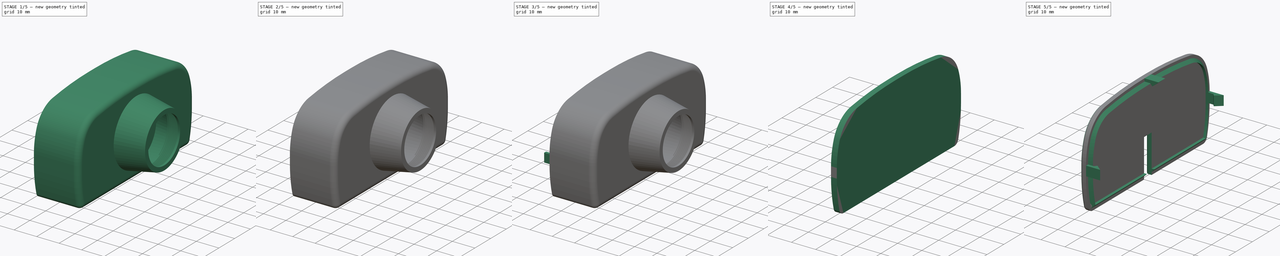
[diagram: build sequence overview — one tinted view per stage of 5, left to right]
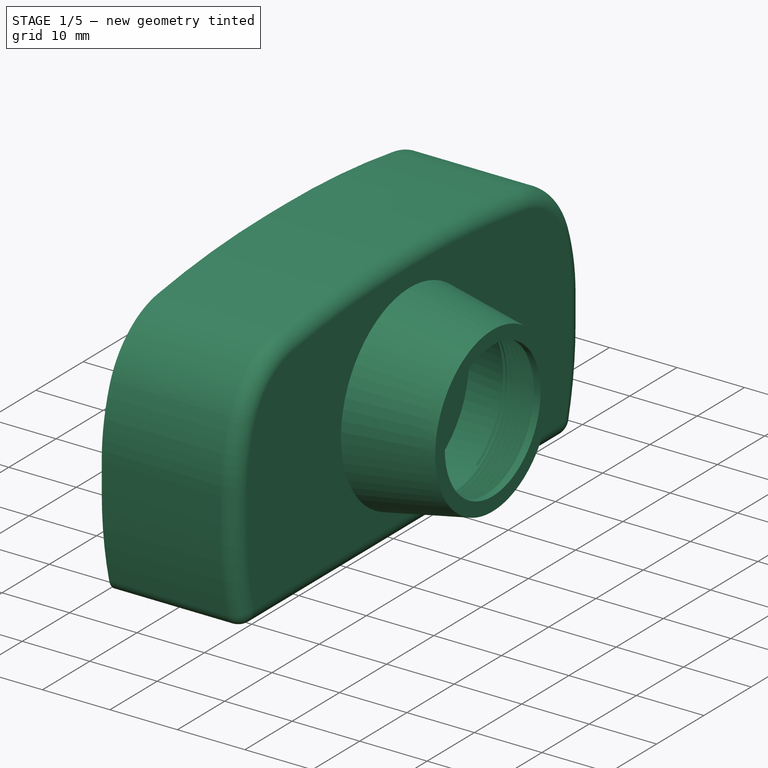
[diagram: stage 1 of 5 — iso view after this stage's code; geometry added in this stage tinted green]
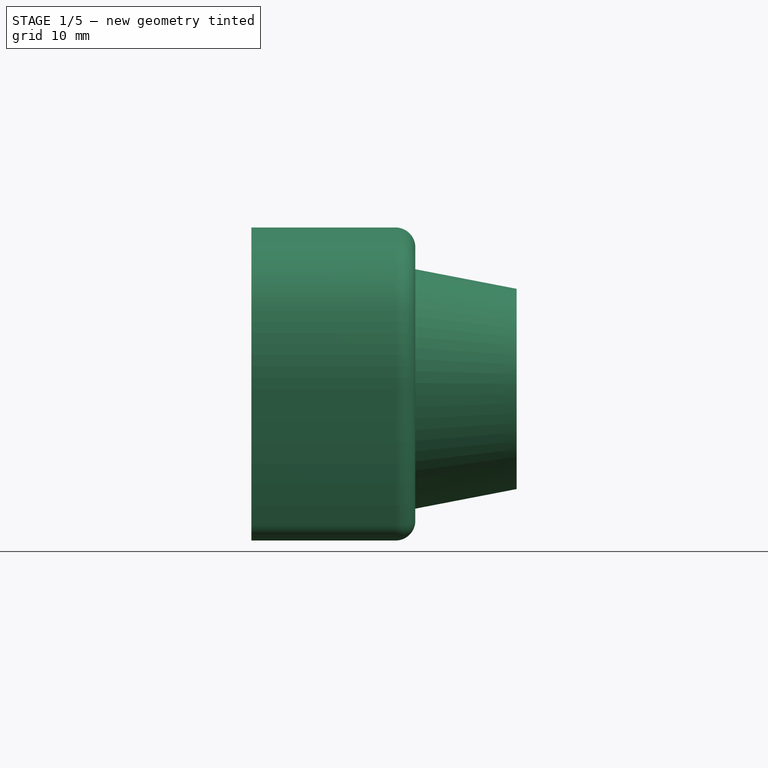
[diagram: stage 1 of 5 — front view after this stage's code; geometry added in this stage tinted green]
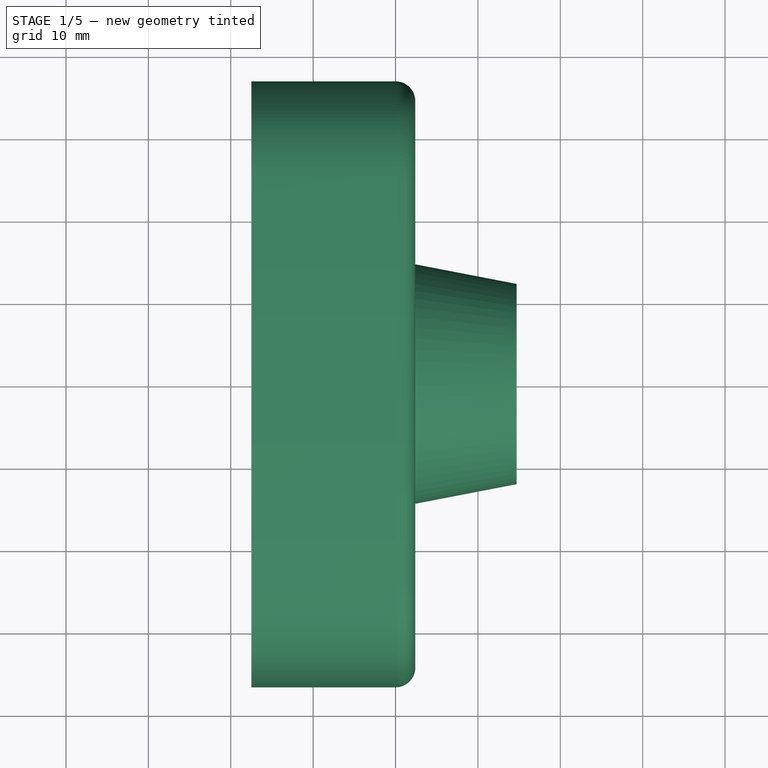
[diagram: stage 1 of 5 — top view after this stage's code; geometry added in this stage tinted green]
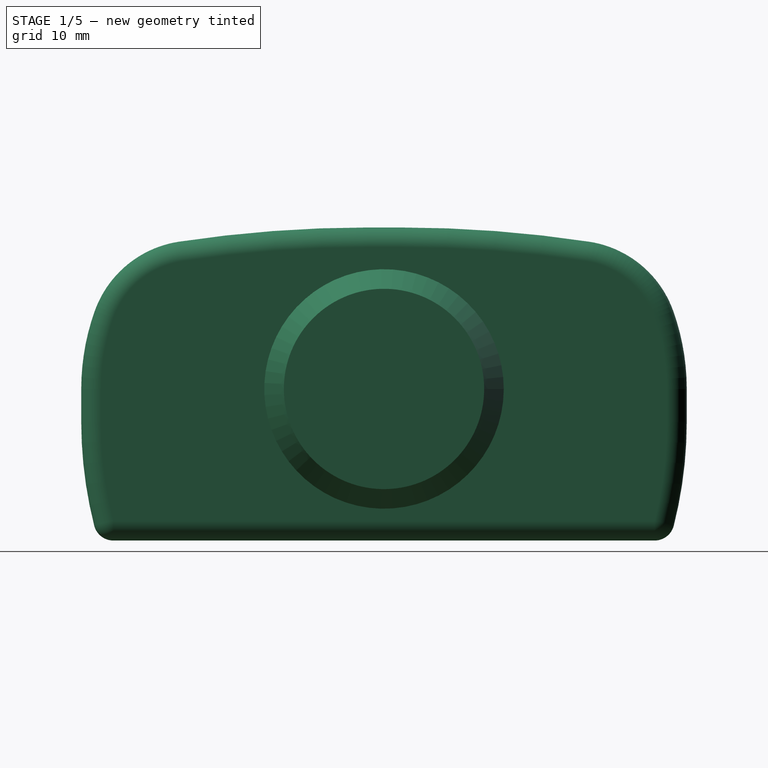
[diagram: stage 1 of 5 — right view after this stage's code; geometry added in this stage tinted green]
FCSTD DOCUMENT  (FreeCAD 0.21R31328 (Git))
Label: fish-eye-camera
License: All rights reserved
LicenseURL: https://en.wikipedia.org/wiki/All_rights_reserved
objects: PartDesign::Body×9, Sketcher::SketchObject×7, PartDesign::FeatureBase×5, PartDesign::Pad×3, PartDesign::SubShapeBinder×3, PartDesign::Boolean×3, PartDesign::Pocket×2, PartDesign::Revolution×1, PartDesign::Thickness×1, Spreadsheet::Sheet×1, PartDesign::SubtractivePipe×1, PartDesign::AdditivePipe×1, PartDesign::SubtractiveHelix×1, PartDesign::Fillet×1
note: 49 computed .brp shape members not serialized (recipe doc carries the construction recipe); baked Part::Feature solids carry a one-line shape summary decoded from their .brp

FEATURE [Sketcher::SketchObject] Sketch
  FullyConstrained = false
  MapMode = 5
  Support = -> [XY_Plane]
  expr: Constraints[9] = 22.25mm / 2
  sketch-geometry (8):
    g0: LineSegment StartX=9.7 StartY=11.125 StartZ=0 EndX=13.7 EndY=11.125 EndZ=0
    g1: LineSegment StartX=13.7 StartY=11.125 StartZ=0 EndX=13.7 EndY=10.125 EndZ=0
    g2: LineSegment StartX=13.7 StartY=10.125 StartZ=0 EndX=14.7 EndY=10.125 EndZ=0
    g3: LineSegment StartX=14.7 StartY=10.125 StartZ=0 EndX=14.7 EndY=12.1585 EndZ=0
    g4: LineSegment StartX=14.7 StartY=12.1585 StartZ=0 EndX=0 EndY=15 EndZ=0
    g5: LineSegment StartX=0 StartY=15 StartZ=0 EndX=0 EndY=13 EndZ=0
    g6: LineSegment StartX=9.7 StartY=11.125 StartZ=0 EndX=0 EndY=13 EndZ=0
    g7: GeomPoint X=4.20241 Y=12.8749 Z=0
  constraints (21):
    c: Horizontal(g0)
    c: Coincident(g0,g1)
    c: Vertical(g1)
    c: Coincident(g1,g2)
    c: Horizontal(g2)
    c: Coincident(g2,g3)
    c: Vertical(g3)
    c: Coincident(g3,g4)
    c: PointOnObject(g4,g-2)
    c: DistanceY(g-1,g0) = 11.125
    c: DistanceY(g1,g1) = 1
    c: DistanceX(g2,g2) = 1
    c: DistanceX(g0,g0) = 4
    c: DistanceX(g-1,g0) = 13.7
    c: PointOnObject(g5,g-2)
    c: Coincident(g5,g4)
    c: DistanceY(g-1,g4) = 15
    c: Coincident(g6,g0)
    c: Coincident(g6,g5)
    c: Parallel(g6,g4)
    c: DistanceY(g5,g5) = 2
FEATURE [PartDesign::Revolution] Revolution
  Angle = 360
  Axis = (1,0,0)
  Base = (0,0,0)
  Profile = -> Sketch
  ReferenceAxis = -> Sketch [H_Axis]
FEATURE [Sketcher::SketchObject] Sketch001  label="baseSketch"
  FullyConstrained = true
  MapMode = 5
  Placement = pos=(0,0,0) rot=(0.57735,0.57735,0.57735;2.0944rad)
  Support = -> [YZ_Plane001]
  expr: Constraints[14] = <<params>>.cameraWidthBottom
  expr: Constraints[17] = <<params>>.notchWidth
  expr: Constraints[29] = <<params>>.cameraWidth
  expr: Constraints[7] = <<params>>.cameraHeight
  sketch-geometry (12):
    g0: LineSegment StartX=32.85 StartY=-16 StartZ=0 EndX=-32.85 EndY=-16 EndZ=0
    g1: ArcOfCircle CenterX=-22.9627 CenterY=5.1188 CenterZ=0 NormalX=0 NormalY=0 NormalZ=1 AngleXU=0 Radius=10.5 StartAngle=1.72137 EndAngle=2.7983
    g2: ArcOfCircle CenterX=22.9627 CenterY=5.1188 CenterZ=0 NormalX=0 NormalY=0 NormalZ=1 AngleXU=0 Radius=10.5 StartAngle=0.34329 EndAngle=1.42022
    g3: ArcOfCircle CenterX=-2 CenterY=-133.046 CenterZ=0 NormalX=0 NormalY=0 NormalZ=1 AngleXU=0 Radius=150.246 StartAngle=1.5708 EndAngle=1.72137
    g4: ArcOfCircle CenterX=2 CenterY=-133.046 CenterZ=0 NormalX=0 NormalY=0 NormalZ=1 AngleXU=0 Radius=150.246 StartAngle=1.42022 EndAngle=1.5708
    g5: LineSegment StartX=-2 StartY=17.2 StartZ=0 EndX=2 EndY=17.2 EndZ=0
    g6: ArcOfCircle CenterX=-8.64204 CenterY=0 CenterZ=0 NormalX=0 NormalY=0 NormalZ=1 AngleXU=0 Radius=25.708 StartAngle=2.7983 EndAngle=3.14159
    g7: ArcOfCircle CenterX=14.4 CenterY=-4 CenterZ=0 NormalX=0 NormalY=0 NormalZ=1 AngleXU=0 Radius=48.75 StartAngle=3.14159 EndAngle=3.3903
    g8: LineSegment StartX=-34.35 StartY=3.1e-15 StartZ=0 EndX=-34.35 EndY=-4 EndZ=0
    g9: ArcOfCircle CenterX=-14.4 CenterY=-4 CenterZ=0 NormalX=0 NormalY=0 NormalZ=1 AngleXU=0 Radius=48.75 StartAngle=6.03448 EndAngle=6.28319
    g10: ArcOfCircle CenterX=8.64204 CenterY=-9.8e-15 CenterZ=0 NormalX=0 NormalY=0 NormalZ=1 AngleXU=0 Radius=25.708 StartAngle=0 EndAngle=0.34329
    g11: LineSegment StartX=34.35 StartY=-1.29e-14 StartZ=0 EndX=34.35 EndY=-4 EndZ=0
  constraints (32):
    c: Distance(g-1,g0) = 16
    c: Equal(g2,g1)
    c: Symmetric(g0,g0,g-2)
    c: Diameter(g1) = 21
    c: Equal(g4,g3)
    c: Tangent(g4,g2) = -1.5708
    c: Tangent(g3,g1) = -1.5708
    c: Distance(g3,g0) = 33.2
    c: Coincident(g7,g0)
    c: Tangent(g6,g1) = -1.5708
    c: Coincident(g9,g0)
    c: Tangent(g10,g2) = -1.5708
    c: Symmetric(g2,g1,g-2)
    c: Vertical(g1,g0)
    c: DistanceX(g0,g0) = 65.7
    c: Distance(g2,g0) = 31.5
    c: Horizontal(g5)
    c: DistanceX(g5,g5) = 4
    c: Tangent(g5,g4) = 1.5708
    c: Tangent(g5,g3) = 1.5708
    c: Vertical(g8)
    c: Vertical(g11)
    c: Equal(g8,g11)
    c: Equal(g11,g5)
    c: Tangent(g8,g7) = -1.5708
    c: Tangent(g8,g6) = -1.5708
    c: Tangent(g11,g9) = 1.5708
    c: Tangent(g11,g10) = 1.5708
    c: Equal(g9,g7)
    c: DistanceX(g6,g10) = 68.7
    c: PointOnObject(g6,g-1)
    c: Equal(g6,g10)
FEATURE [PartDesign::Pad] Pad
  Direction = (1,-2e-16,3e-16)
  Length = 17.5
  Length2 = 10
  Placement = pos=(0,0,0) rot=(0.57735,0.57735,0.57735;2.0944rad)
  Profile = -> Sketch001
  ReferenceAxis = -> Sketch001 [N_Axis]
  Reversed = true
  Type = 0
  expr: Length = <<params>>.cameraDepth
FEATURE [PartDesign::Thickness] Thickness
  Base = -> Pad [Face14]
  BaseFeature = -> Pad
  Intersection = false
  Join = 0
  Mode = 0
  SupportTransform = false
  Value = 2.4
  expr: Value = <<params>>.wallThickness
FEATURE [Sketcher::SketchObject] Sketch006
  FullyConstrained = true
  MapMode = 5
  Support = -> [XY_Plane]
  expr: Constraints[7] = 22.25mm / 2 - 0.02mm
  sketch-geometry (3):
    g0: LineSegment StartX=12.951 StartY=-11.105 StartZ=0 EndX=13.3255 EndY=-11.7537 EndZ=0
    g1: LineSegment StartX=13.3255 StartY=-11.7537 StartZ=0 EndX=13.7 EndY=-11.105 EndZ=0
    g2: LineSegment StartX=13.7 StartY=-11.105 StartZ=0 EndX=12.951 EndY=-11.105 EndZ=0
  constraints (9):
    c: Coincident(g0,g1)
    c: Coincident(g1,g2)
    c: Coincident(g2,g0)
    c: Horizontal(g2)
    c: Equal(g1,g2)
    c: Equal(g2,g0)
    c: DistanceX(g2,g2) = 0.749
    c: DistanceY(g1,g-1) = 11.105
    c: DistanceX(g-1,g1) = 13.7
FEATURE [PartDesign::SubtractiveHelix] SubtractiveHelix
  Angle = 0
  Axis = (1,0,0)
  Base = (0,0,0)
  BaseFeature = -> Revolution
  Growth = 0
  HasBeenEdited = true
  Height = 5
  LeftHanded = false
  Mode = 0
  Outside = false
  Pitch = 0.75
  Profile = -> Sketch006
  ReferenceAxis = -> Sketch006 [H_Axis]
  Reversed = true
  Turns = 6.66667
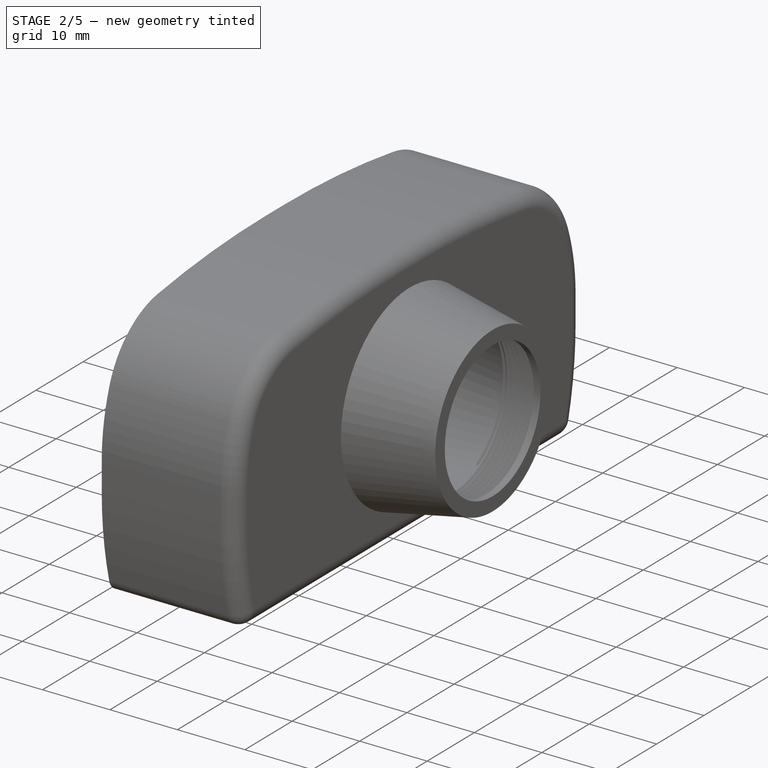
[diagram: stage 2 of 5 — iso view after this stage's code; geometry added in this stage tinted green]
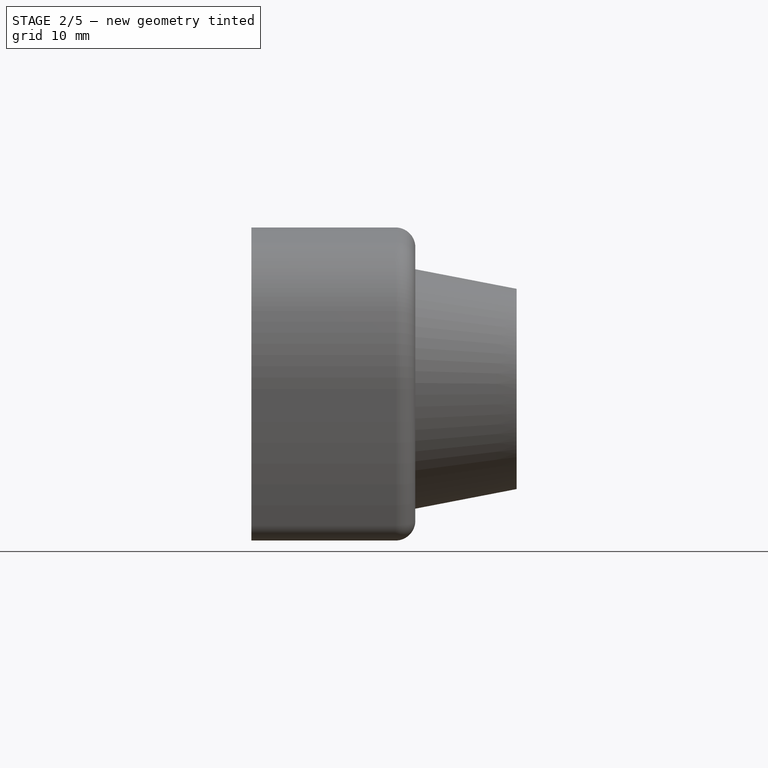
[diagram: stage 2 of 5 — front view after this stage's code; geometry added in this stage tinted green]
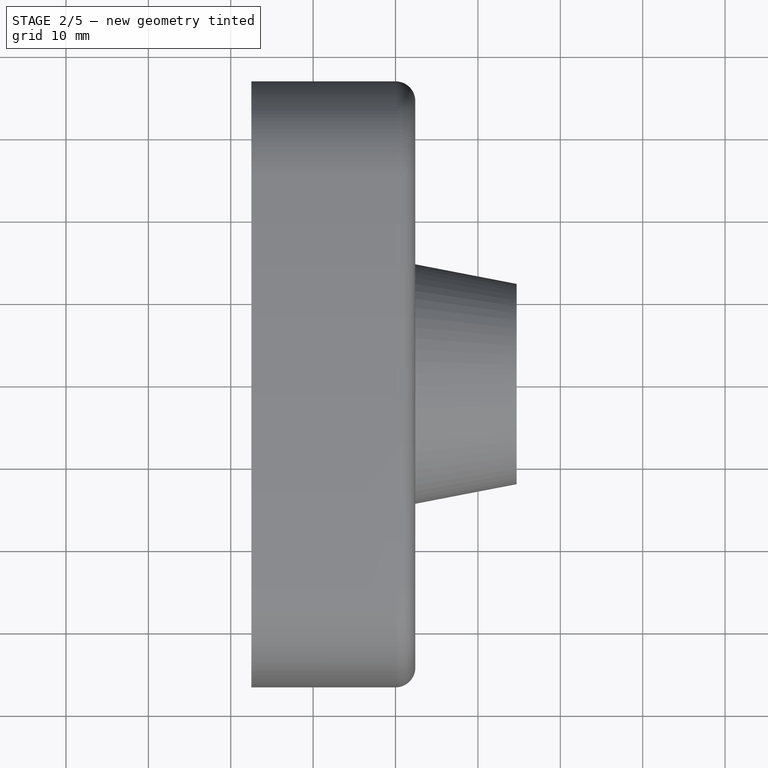
[diagram: stage 2 of 5 — top view after this stage's code; geometry added in this stage tinted green]
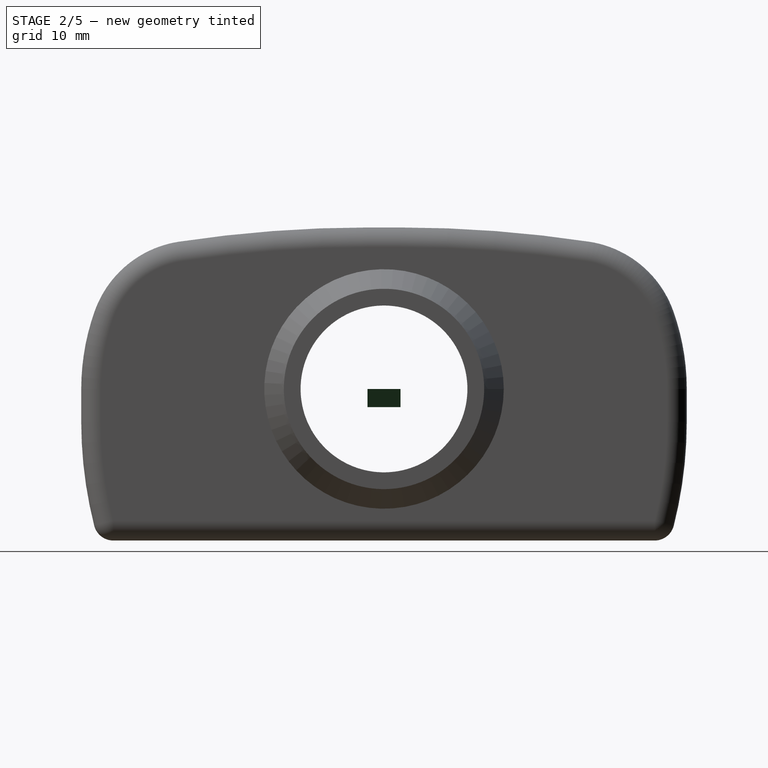
[diagram: stage 2 of 5 — right view after this stage's code; geometry added in this stage tinted green]
FEATURE [Sketcher::SketchObject] Sketch002
  FullyConstrained = true
  MapMode = 5
  Placement = pos=(0,0,0) rot=(0.57735,0.57735,0.57735;2.0944rad)
  Support = -> [YZ_Plane001]
  sketch-geometry (1):
    g0: Circle CenterX=0 CenterY=0 CenterZ=0 NormalX=0 NormalY=0 NormalZ=1 AngleXU=0 Radius=13
  constraints (2):
    c: Coincident(g0,g-1)
    c: Diameter(g0) = 26
FEATURE [PartDesign::Pocket] Pocket
  BaseFeature = -> Thickness
  Direction = (-1,2e-16,-3e-16)
  Length = 5
  Length2 = 5
  Profile = -> Sketch002
  ReferenceAxis = -> Sketch002 [N_Axis]
  Reversed = true
  Type = 1
FEATURE [Spreadsheet::Sheet] Spreadsheet  label="params"
  cells = A1=cameraWidth; B1(cameraWidth)==68.7mm; D1=wallThickness; E1(wallThickness)==2.4mm; A2=cameraWidthBottom; B2(cameraWidthBottom)==65.7mm; A3=cameraHeight; B3(cameraHeight)==33.2mm; A4=cameraDepth; B4(cameraDepth)==17.5mm; A5=cameraBottomToSensor; B5(cameraBottomToSensor)==16mm; A7=notchWidth; B7(notchWidth)==4mm
FEATURE [Sketcher::SketchObject] Sketch003  label="grooveSketch"
  FullyConstrained = true
  MapMode = 5
  Placement = pos=(0,0,0) rot=(1,0,0;1.5708rad)
  Support = -> [XZ_Plane001]
  expr: Constraints[6] = <<params>>.wallThickness / 2
  expr: Constraints[7] = <<params>>.cameraBottomToSensor
  expr: Constraints[8] = <<params>>.cameraDepth
  sketch-geometry (3):
    g0: LineSegment StartX=-17.5 StartY=-17.2 StartZ=0 EndX=-17.5 EndY=-16 EndZ=0
    g1: LineSegment StartX=-17.5 StartY=-17.2 StartZ=0 EndX=-16.3 EndY=-16 EndZ=0
    g2: LineSegment StartX=-16.3 StartY=-16 StartZ=0 EndX=-17.5 EndY=-16 EndZ=0
  constraints (9):
    c: Vertical(g0)
    c: Coincident(g0,g1)
    c: Coincident(g1,g2)
    c: Coincident(g2,g0)
    c: Horizontal(g2)
    c: Equal(g2,g0)
    c: DistanceX(g2,g2) = 1.2
    c: DistanceY(g0,g-1) = 16
    c: DistanceX(g0,g-1) = 17.5
FEATURE [Sketcher::SketchObject] Sketch004
  FullyConstrained = true
  MapMode = 5
  Placement = pos=(0,0,0) rot=(1,0,0;1.5708rad)
  Support = -> [XZ_Plane003]
  expr: Constraints[13] = <<params>>.wallThickness
  expr: Constraints[14] = <<params>>.wallThickness / 2
  expr: Constraints[15] = <<params>>.wallThickness / 2 + 1mm
  sketch-geometry (7):
    g0: LineSegment StartX=0 StartY=0 StartZ=0 EndX=5.86096 EndY=0 EndZ=0
    g1: LineSegment StartX=5.86096 StartY=0 StartZ=0 EndX=3.2391 EndY=2.2 EndZ=0
    g2: LineSegment StartX=3.2391 StartY=2.2 StartZ=0 EndX=2.4 EndY=1.2 EndZ=0
    g3: LineSegment StartX=-2.4 StartY=1.2 StartZ=0 EndX=-2.4 EndY=0 EndZ=0
    g4: LineSegment StartX=-2.4 StartY=0 StartZ=0 EndX=0 EndY=0 EndZ=0
    g5: LineSegment StartX=-2.4 StartY=1.2 StartZ=0 EndX=0 EndY=1.2 EndZ=0
    g6: LineSegment StartX=0 StartY=1.2 StartZ=0 EndX=2.4 EndY=1.2 EndZ=0
  constraints (21):
    c: Coincident(g0,g1)
    c: Coincident(g1,g2)
    c: Coincident(g3,g4)
    c: Coincident(g4,g0)
    c: Horizontal(g4)
    c: Coincident(g3,g5)
    c: Horizontal(g5)
    c: Coincident(g5,g6)
    c: Coincident(g6,g2)
    c: Horizontal(g6)
    c: Vertical(g0,g5)
    c: Equal(g5,g6)
    c: Vertical(g3)
    c: DistanceX(g5,g5) = 2.4
    c: DistanceY(g3,g3) = 1.2
    c: DistanceY(g0,g1) = 2.2
    c: Angle(g2,g6) = 2.26893
    c: Horizontal(g0)
    c: Angle(g2,g1) = 1.5708
    c: DistanceX(g0,g0) = 5.86096
    c: Coincident(g0,g-1)
FEATURE [PartDesign::Pad] Pad002
  Direction = (0,-1,-2e-16)
  Length = 4
  Length2 = 10
  Midplane = true
  Placement = pos=(0,0,0) rot=(1,0,0;1.5708rad)
  Profile = -> Sketch004
  ReferenceAxis = -> Sketch004 [N_Axis]
  Type = 0
  expr: Length = <<params>>.notchWidth
FEATURE [PartDesign::Body] Body004  label="notch2"
  BaseFeature = -> Body003
  Group = -> [Clone]
  Origin = -> Origin004
  Placement = pos=(-17.5,36.75,-2) rot=(1,0,0;1.5708rad)
  Tip = -> Clone
  expr: .Placement.Base.x = -<<params>>.cameraDepth
  expr: .Placement.Base.y = <<params>>.cameraWidth / 2 + <<params>>.wallThickness
  expr: .Placement.Base.z = -<<params>>.notchWidth / 2
FEATURE [PartDesign::FeatureBase] Clone001
  BaseFeature = -> Body003
  Placement = pos=(0,0,0) rot=(1,0,0;3.14159rad)
FEATURE [PartDesign::Body] Body008  label="notch3c"
  BaseFeature = -> Body005
  Group = -> [Clone004]
  Origin = -> Origin008
  Tip = -> Clone004
FEATURE [PartDesign::SubtractivePipe] SubtractivePipe
  AuxilleryCurvelinear = true
  AuxillerySpineTangent = false
  BaseFeature = -> Pocket
  Binormal = (0,0,0)
  Mode = 0
  Profile = -> Sketch003
  Spine = -> Pocket [Edge4,Edge10,Edge21,Edge22,Edge23,Edge24,Edge25,Edge26,Edge27,Edge28,Edge29,Edge7]
  SpineTangent = false
  Transformation = 0
  Transition = 1
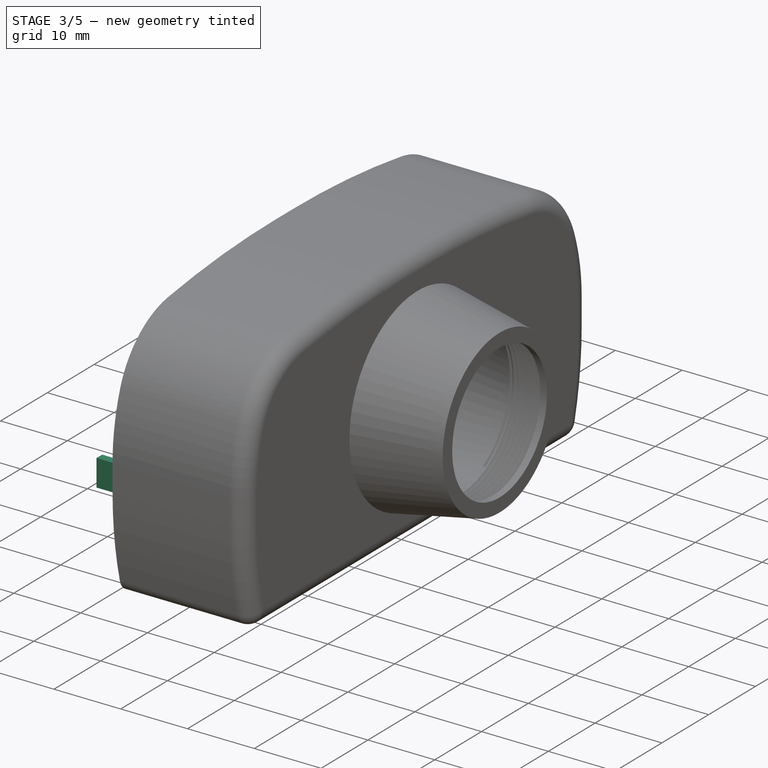
[diagram: stage 3 of 5 — iso view after this stage's code; geometry added in this stage tinted green]
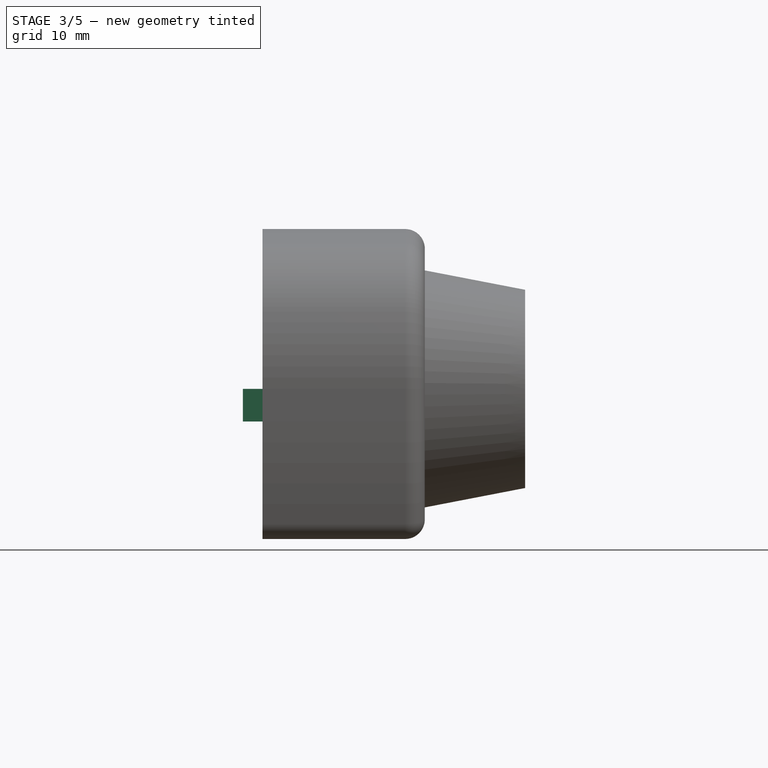
[diagram: stage 3 of 5 — front view after this stage's code; geometry added in this stage tinted green]
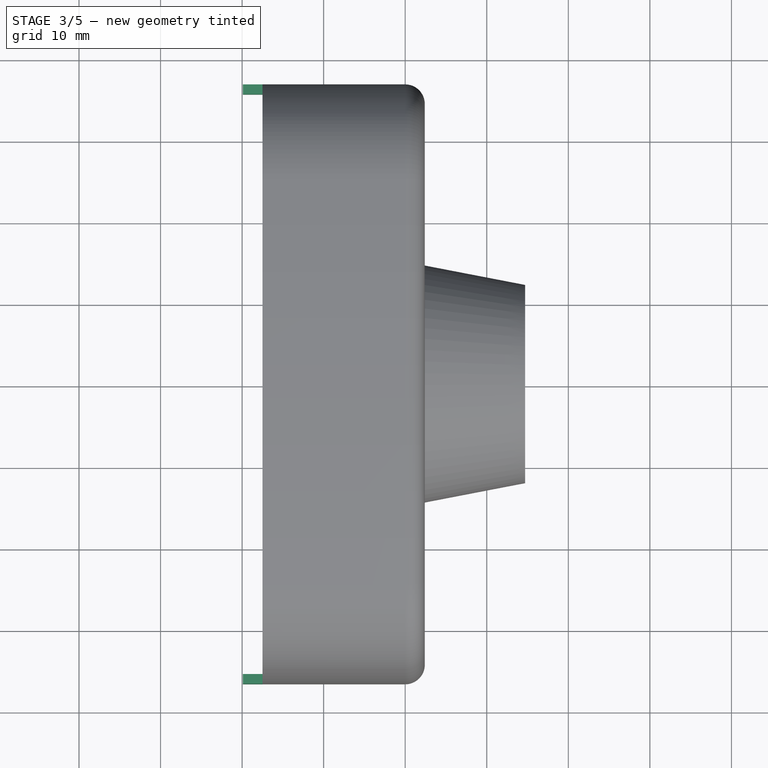
[diagram: stage 3 of 5 — top view after this stage's code; geometry added in this stage tinted green]
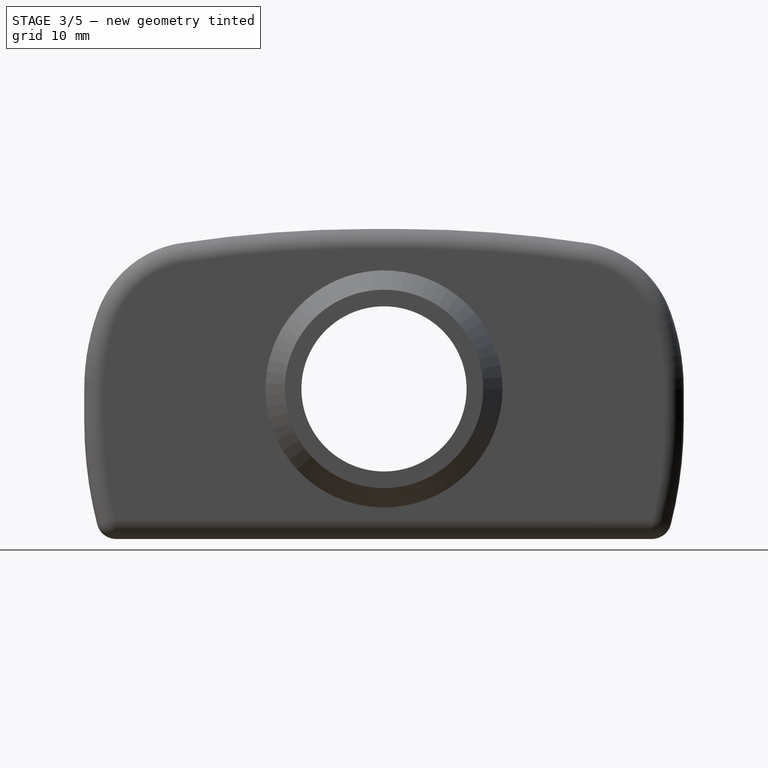
[diagram: stage 3 of 5 — right view after this stage's code; geometry added in this stage tinted green]
FEATURE [PartDesign::Body] Body003  label="notch1"
  Group = -> [Sketch004,Pad002]
  Origin = -> Origin003
  Placement = pos=(-17.5,0,19.6) rot=(1,0,0;3.14159rad)
  Tip = -> Pad002
  expr: .Placement.Base.x = -<<params>>.cameraDepth
  expr: .Placement.Base.z = <<params>>.cameraHeight - <<params>>.cameraBottomToSensor + <<params>>.wallThickness
FEATURE [PartDesign::FeatureBase] Clone
  BaseFeature = -> Body003
FEATURE [PartDesign::Body] Body006  label="notch1c"
  BaseFeature = -> Body003
  Group = -> [Clone002]
  Origin = -> Origin006
  Tip = -> Clone002
FEATURE [PartDesign::FeatureBase] Clone003
  BaseFeature = -> Body004
  Placement = pos=(-17.5,36.75,-2) rot=(1,0,0;1.5708rad)
FEATURE [PartDesign::Body] Body007  label="notch2c"
  BaseFeature = -> Body004
  Group = -> [Clone003]
  Origin = -> Origin007
  Tip = -> Clone003
FEATURE [PartDesign::FeatureBase] Clone004
  BaseFeature = -> Body005
  Placement = pos=(-17.5,-36.75,-2) rot=(1,0,0;1.5708rad)
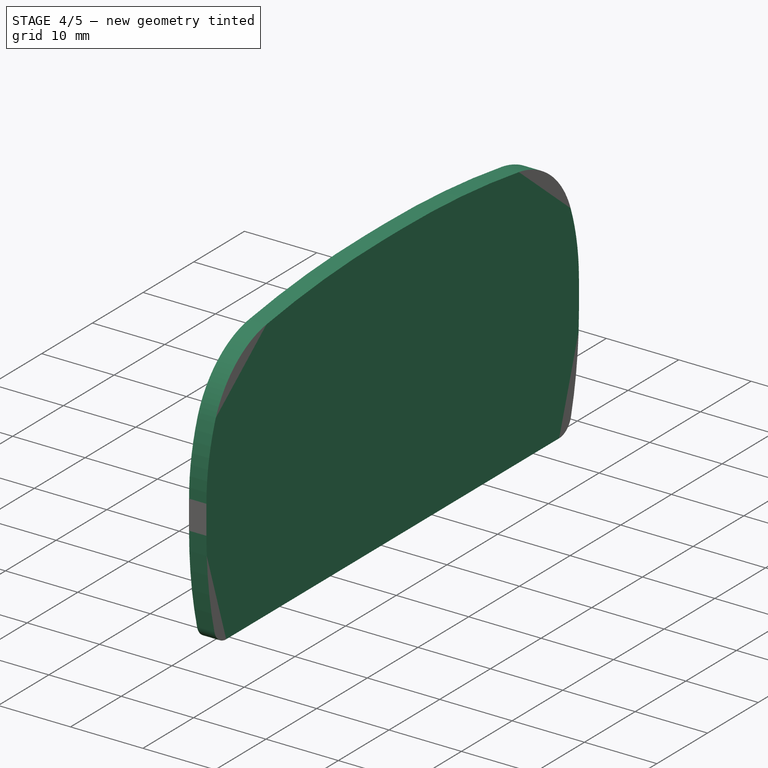
[diagram: stage 4 of 5 — iso view after this stage's code; geometry added in this stage tinted green]
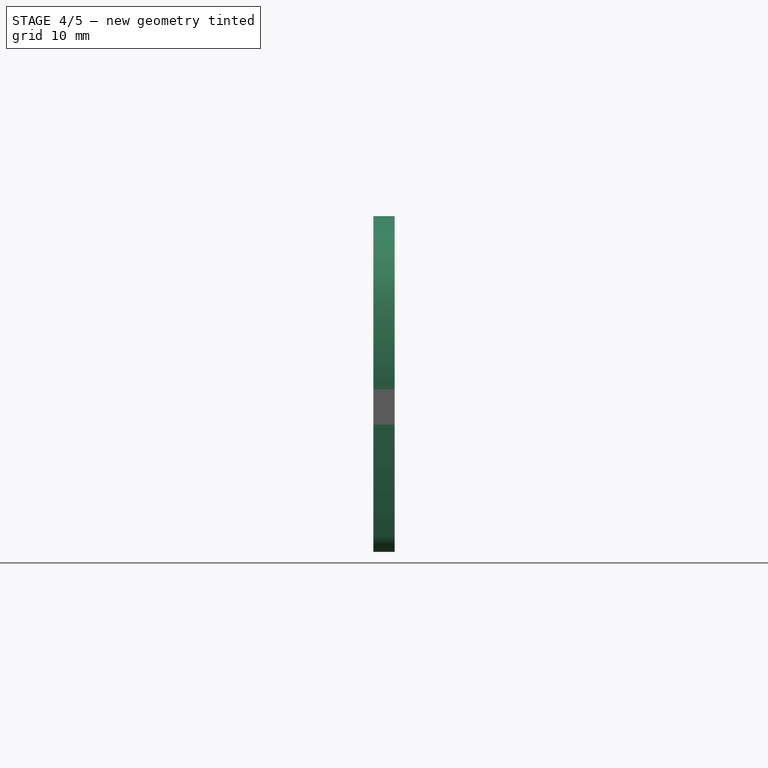
[diagram: stage 4 of 5 — front view after this stage's code; geometry added in this stage tinted green]
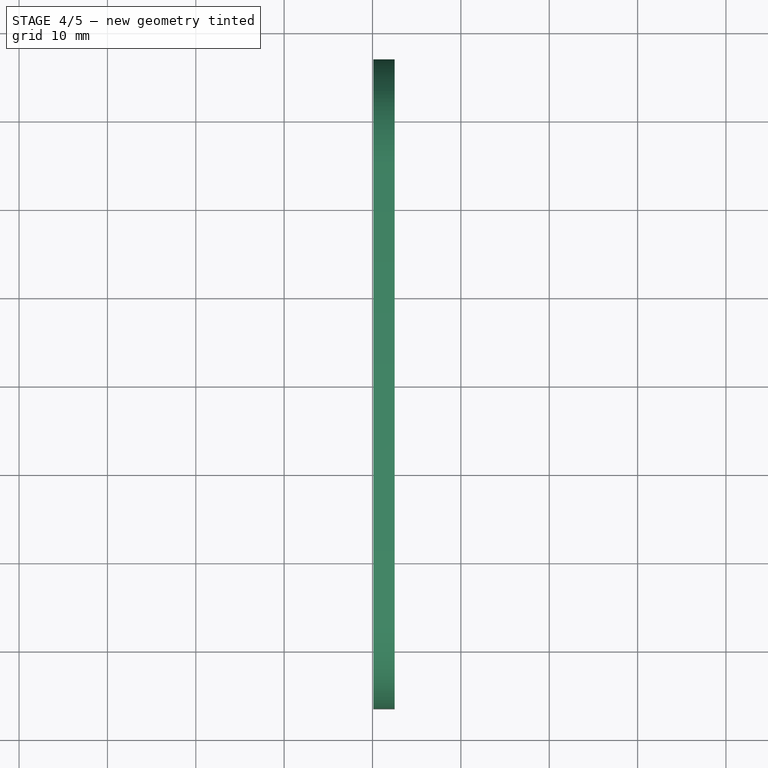
[diagram: stage 4 of 5 — top view after this stage's code; geometry added in this stage tinted green]
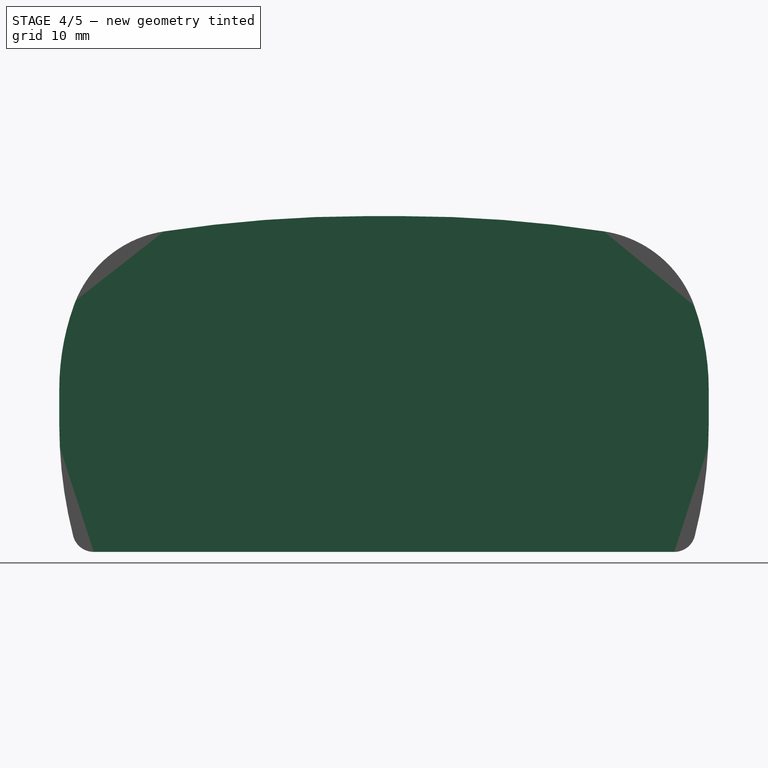
[diagram: stage 4 of 5 — right view after this stage's code; geometry added in this stage tinted green]
FEATURE [PartDesign::Body] Body005  label="notch3"
  BaseFeature = -> Body003
  Group = -> [Clone001]
  Origin = -> Origin005
  Placement = pos=(-17.5,-36.75,-2) rot=(1,0,0;1.5708rad)
  Tip = -> Clone001
  expr: .Placement.Base.x = -<<params>>.cameraDepth
  expr: .Placement.Base.y = -<<params>>.cameraWidth / 2 - <<params>>.wallThickness
  expr: .Placement.Base.z = -<<params>>.notchWidth / 2
FEATURE [PartDesign::SubShapeBinder] Binder  label="innerShape"
  BindCopyOnChange = 0
  BindMode = 0
  ClaimChildren = false
  Context = -> Body001 [Boolean001.Body002.Binder.]
  Fuse = false
  MakeFace = true
  OffsetFill = false
  OffsetIntersection = false
  OffsetJoinType = 0
  OffsetOpenResult = false
  PartialLoad = false
  Relative = true
  Support = -> [Body001[Thickness.Edge4,Thickness.Edge7,Thickness.Edge10,Thickness.Edge13,Thickness.Edge16,Thickness.Edge19,Thickness.Edge22,Thickness.Edge25]]
  _Version = 2
FEATURE [PartDesign::SubShapeBinder] Binder001  label="outerShape"
  BindCopyOnChange = 0
  BindMode = 0
  ClaimChildren = false
  Context = -> Body001 [Boolean001.Body002.Binder001.]
  Fuse = false
  MakeFace = true
  OffsetFill = false
  OffsetIntersection = false
  OffsetJoinType = 0
  OffsetOpenResult = false
  PartialLoad = false
  Relative = true
  Support = -> [Body001[Thickness.Edge50,Thickness.Edge49,Thickness.Edge48,Thickness.Edge47,Thickness.Edge46,Thickness.Edge45,Thickness.Edge44,Thickness.Edge43]]
  _Version = 2
FEATURE [PartDesign::Pad] Pad003
  Direction = (1,-2e-16,6e-16)
  Length = 2.4
  Length2 = 10
  Profile = -> Binder001
  Reversed = true
  Type = 0
  expr: Length = <<params>>.wallThickness
FEATURE [PartDesign::FeatureBase] Clone002
  BaseFeature = -> Body003
  Placement = pos=(-17.5,0,19.6) rot=(1,0,0;3.14159rad)
FEATURE [PartDesign::Boolean] Boolean
  BaseFeature = -> SubtractivePipe
  Group = -> [Body006,Body007,Body008]
  Type = 1
FEATURE [PartDesign::Body] Body  label="lense"
  Group = -> [Sketch,Revolution,Sketch006,SubtractiveHelix]
  Origin = -> Origin
  Tip = -> SubtractiveHelix
FEATURE [PartDesign::Boolean] Boolean002
  BaseFeature = -> Boolean
  Group = -> [Body]
  Type = 0
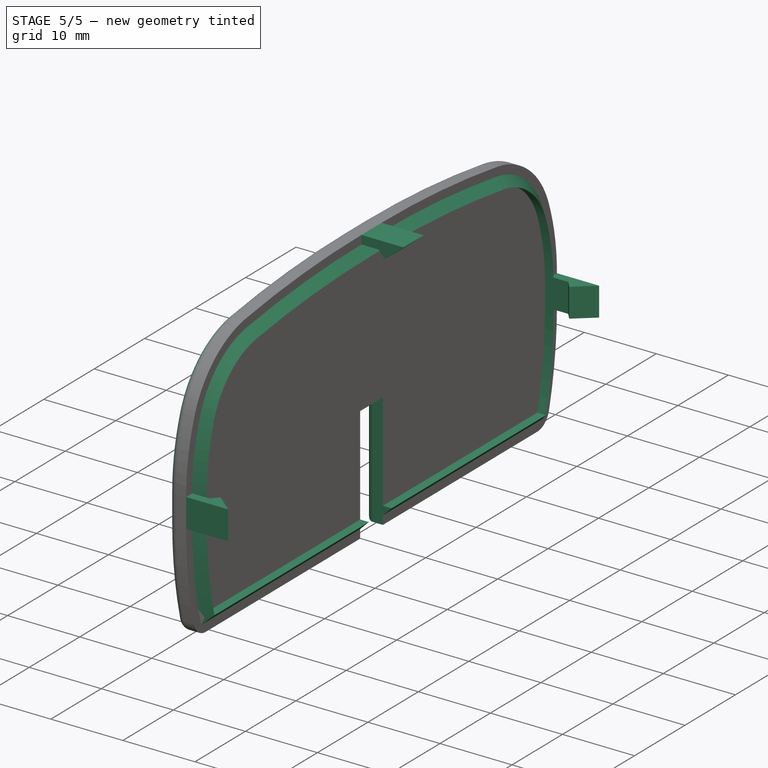
[diagram: stage 5 of 5 — iso view after this stage's code; geometry added in this stage tinted green]
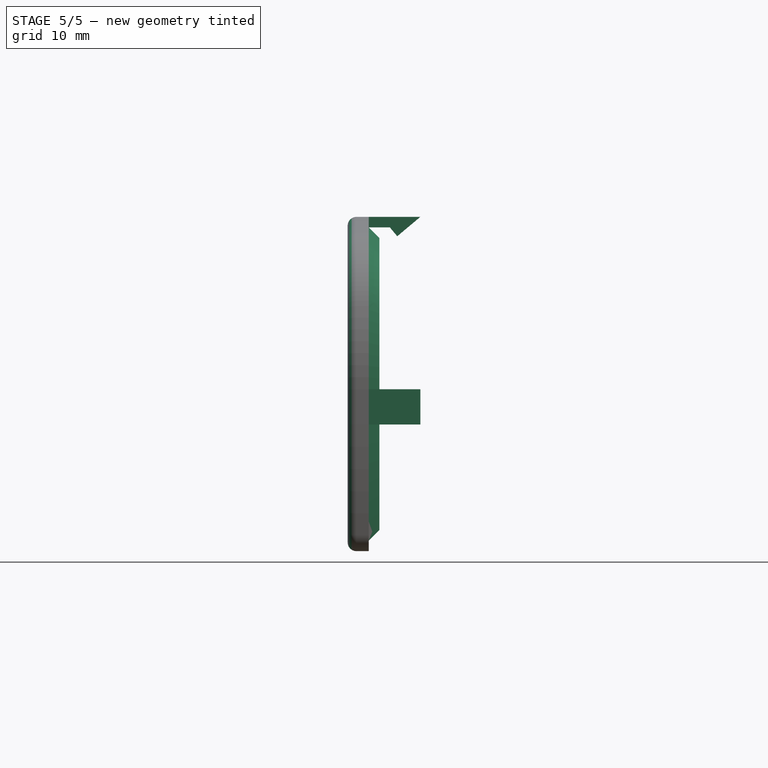
[diagram: stage 5 of 5 — front view after this stage's code; geometry added in this stage tinted green]
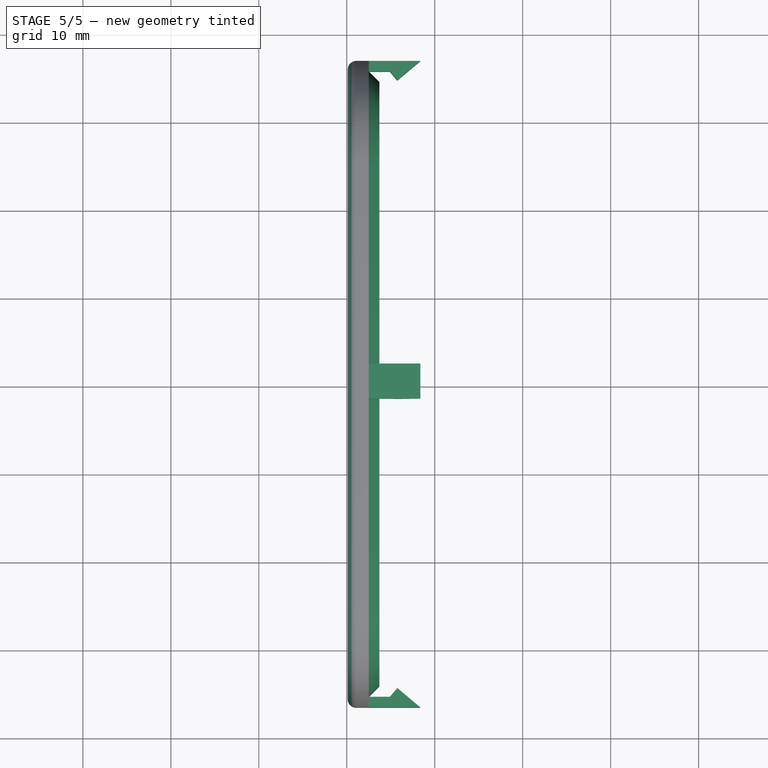
[diagram: stage 5 of 5 — top view after this stage's code; geometry added in this stage tinted green]
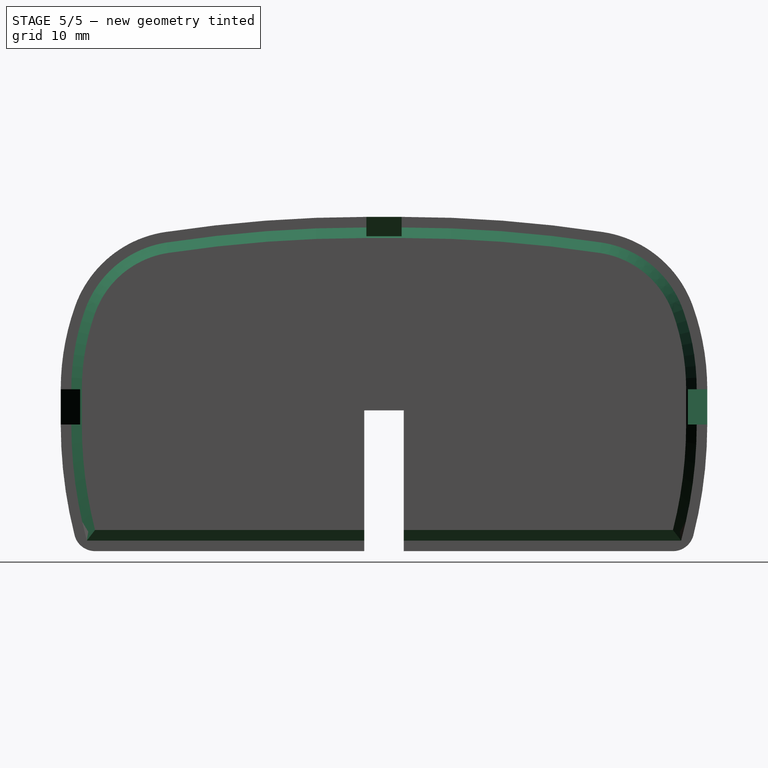
[diagram: stage 5 of 5 — right view after this stage's code; geometry added in this stage tinted green]
FEATURE [PartDesign::SubShapeBinder] Binder002
  BindCopyOnChange = 0
  BindMode = 0
  ClaimChildren = false
  Context = -> Body002 [Binder002.]
  Fuse = false
  MakeFace = true
  OffsetFill = false
  OffsetIntersection = false
  OffsetJoinType = 0
  OffsetOpenResult = false
  PartialLoad = false
  Relative = true
  Support = -> [Body001[SubtractivePipe.Sketch003.]]
  _Version = 2
FEATURE [PartDesign::AdditivePipe] AdditivePipe
  AuxilleryCurvelinear = true
  AuxillerySpineTangent = false
  BaseFeature = -> Pad003
  Binormal = (0,0,0)
  Mode = 0
  Profile = -> Binder002 [Face1]
  Spine = -> Binder [Edge11,Edge10,Edge9,Edge8,Edge7,Edge6,Edge5,Edge4,Edge3,Edge2,Edge1,Edge12]
  SpineTangent = false
  Transformation = 0
  Transition = 1
FEATURE [PartDesign::Boolean] Boolean001
  BaseFeature = -> AdditivePipe
  Group = -> [Body003,Body004,Body005]
  Type = 0
FEATURE [Sketcher::SketchObject] Sketch005
  FullyConstrained = true
  MapMode = 5
  Placement = pos=(0,0,0) rot=(0.57735,0.57735,0.57735;2.0944rad)
  Support = -> [YZ_Plane002]
  expr: Constraints[6] = <<params>>.cameraBottomToSensor + <<params>>.wallThickness
  sketch-geometry (4):
    g0: LineSegment StartX=-2.25 StartY=-18.4 StartZ=0 EndX=2.25 EndY=-18.4 EndZ=0
    g1: LineSegment StartX=2.25 StartY=-18.4 StartZ=0 EndX=2.25 EndY=-2.4 EndZ=0
    g2: LineSegment StartX=2.25 StartY=-2.4 StartZ=0 EndX=-2.25 EndY=-2.4 EndZ=0
    g3: LineSegment StartX=-2.25 StartY=-2.4 StartZ=0 EndX=-2.25 EndY=-18.4 EndZ=0
  constraints (11):
    c: Horizontal(g0)
    c: Vertical(g1)
    c: Coincident(g1,g2)
    c: Coincident(g2,g3)
    c: Vertical(g3)
    c: Symmetric(g1,g2,g-2)
    c: DistanceY(g0,g-1) = 18.4
    c: DistanceX(g2,g2) = 4.5
    c: DistanceY(g1,g1) = 16
    c: Coincident(g0,g3)
    c: Coincident(g0,g1)
FEATURE [PartDesign::Pocket] Pocket001
  BaseFeature = -> Boolean001
  Direction = (-1,2e-16,-3e-16)
  Length = 5
  Length2 = 5
  Profile = -> Sketch005
  ReferenceAxis = -> Sketch005 [N_Axis]
  Type = 1
FEATURE [PartDesign::Body] Body001  label="cameraBox"
  Group = -> [Sketch001,Pad,Thickness,Sketch002,Pocket,Sketch003,SubtractivePipe,Boolean,Boolean002]
  Origin = -> Origin001
  Tip = -> Boolean002
FEATURE [PartDesign::Fillet] Fillet
  Base = -> Pocket001 [Edge26,Edge15,Edge16,Edge17]
  BaseFeature = -> Pocket001
  Radius = 1
  SupportTransform = false
  UseAllEdges = false
FEATURE [PartDesign::Body] Body002  label="lid"
  Group = -> [Binder,Binder001,Pad003,Binder002,AdditivePipe,Boolean001,Sketch005,Pocket001,Fillet]
  Origin = -> Origin002
  Tip = -> Fillet
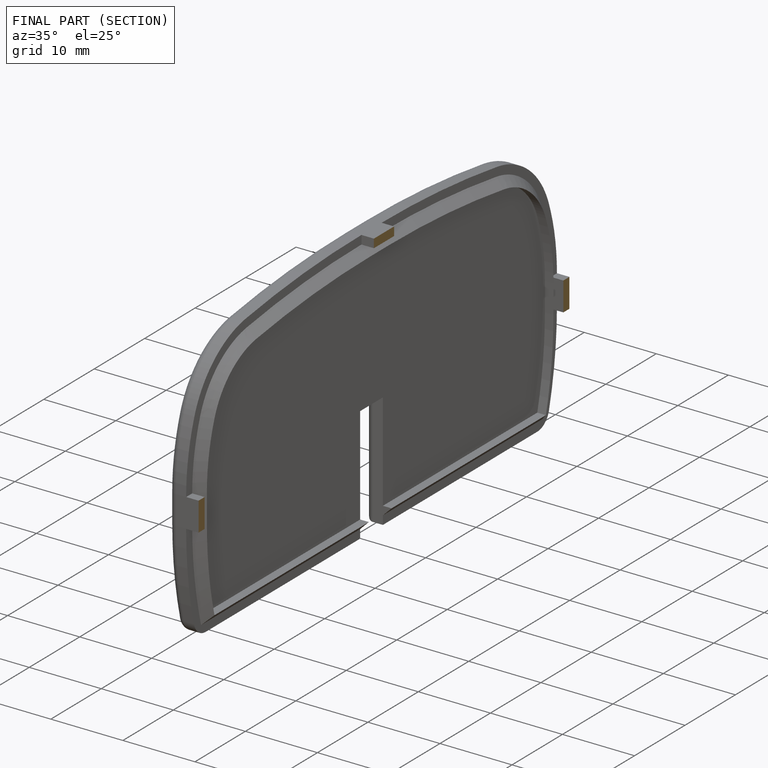
[diagram: finished part — half-section view (interior)]
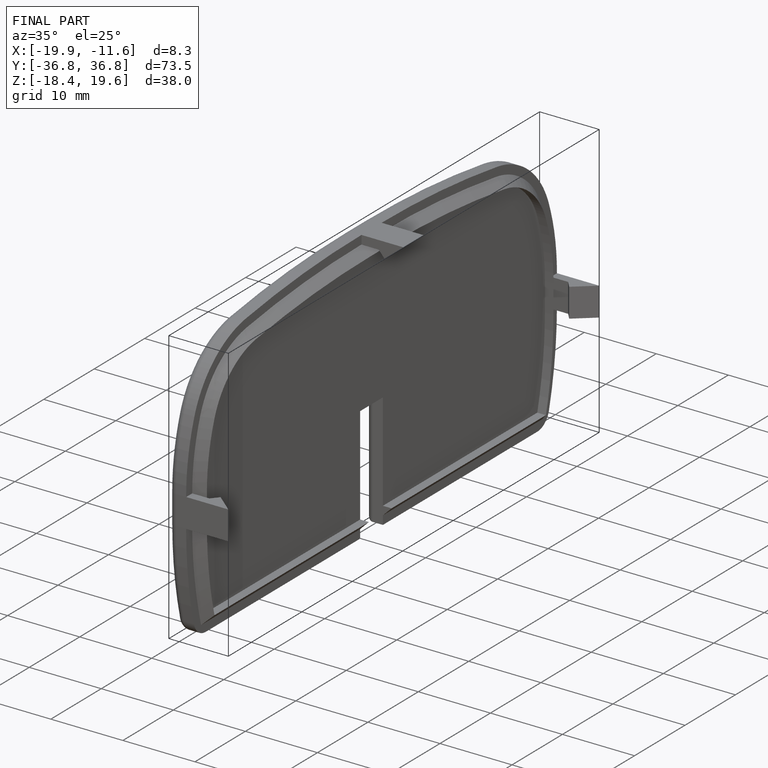
[diagram: finished part — iso view with bounding-box wireframe]
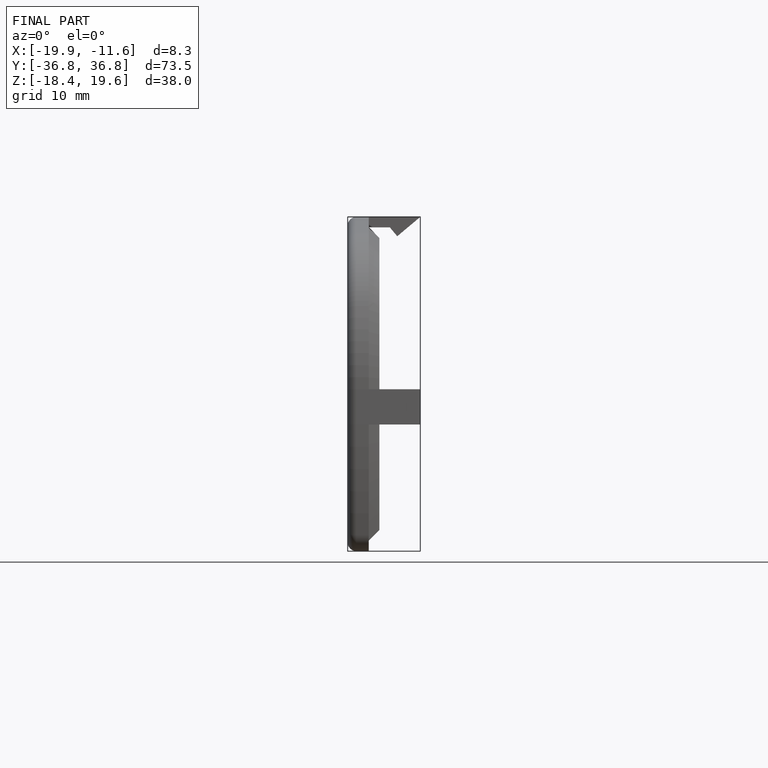
[diagram: finished part — front view with bounding-box wireframe]
